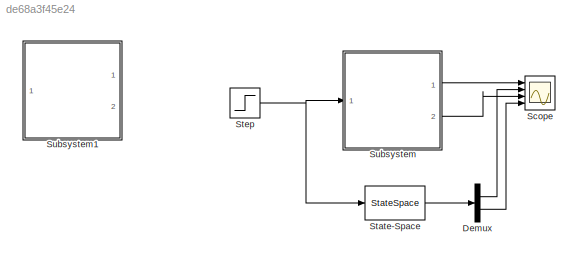
MODEL slx_de68a3f45e24
KIND model
CONFIG AbsTol = auto
CONFIG EnableMultiTasking = off
CONFIG FixedStep = auto
CONFIG MaxStep = auto
CONFIG MinStep = auto
CONFIG RelTol = 1e-3
CONFIG SampleTimeConstraint = Unconstrained
CONFIG SolverName = VariableStepAuto
CONFIG StartTime = 0.0
CONFIG StopTime = 10.0
WORKSPACE source: mxarray member
WORKSPACE b = 4
WORKSPACE k1 = 5
WORKSPACE k2 = 3
WORKSPACE m1 = 2
WORKSPACE m2 = 2
BLOCK [Demux] Demux
  Commented = on
  Outputs = 2
  Ports = [1, 2]
BLOCK [Scope] Scope
  Commented = on
  Floating = off
  NumInputPorts = 4
  Ports = [4]
  ScopeSpecificationString = Simulink.scopes.TimeScopeBlockCfg('CurrentConfiguration', extmgr.ConfigurationSet(extmgr.Configuration('Core','General UI',true),extmgr.Configuration('Core','Source UI',true),extmgr.Configuration('Sources','WiredSimulink',true),extmgr.Configuration('Visuals','Time Domain',true,'SerializedDisplays',{struct('MinYLimReal','-0.18962','MaxYLimReal','1.70656','YLabelReal','','MinYLimMag','0.00000','MaxY...<+1367ch>
BLOCK [StateSpace] State-Space
  A = [0 1 0 0; (-k2/m2) (-b/m2) (k2/m2) (b/m2); 0 0 0 1; (k2/m1) (b/m1) (-(k2+k1)/m1) (-b/m1) ]
  B = [0; 1; 0; 0;]
  C = [1 0 0 0;0 0 1 0]
  Commented = on
  D = [0;0;]
  InitialCondition = 0
  Ports = [1, 1]
BLOCK [Step] Step
  Commented = on
  SampleTime = 0
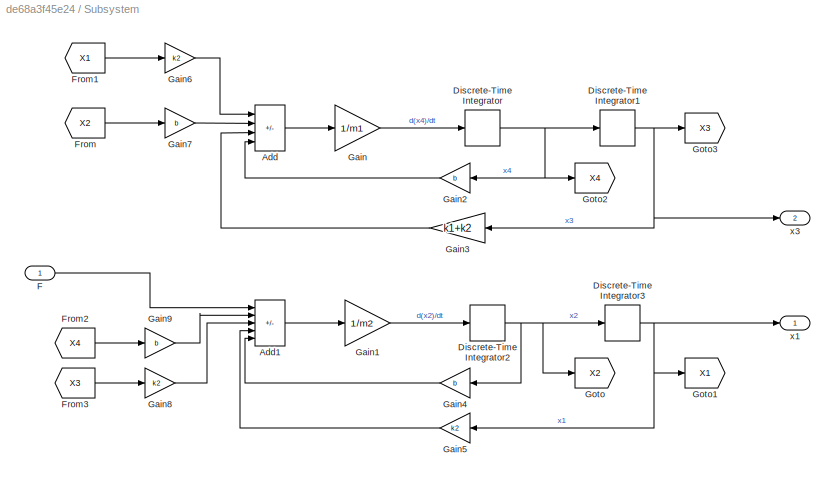
BLOCK [SubSystem] Subsystem
  Commented = on
  Ports = [1, 2]
  RequestExecContextInheritance = off
  TreatAsAtomicUnit = on
BLOCK [Sum] Subsystem/Add
  IconShape = rectangular
  Inputs = ++--
  Ports = [4, 1]
BLOCK [Sum] Subsystem/Add1
  IconShape = rectangular
  Inputs = +++--
  Ports = [5, 1]
BLOCK [DiscreteIntegrator] Subsystem/Discrete-Time Integrator
  ICPrevOutput = DiscIntNeverNeededParam
  ICPrevScaledInput = DiscIntNeverNeededParam
  InitialConditionSetting = Auto
  Ports = [1, 1]
  SampleTime = -1
BLOCK [DiscreteIntegrator] Subsystem/Discrete-Time Integrator1
  ICPrevOutput = DiscIntNeverNeededParam
  ICPrevScaledInput = DiscIntNeverNeededParam
  InitialConditionSetting = Auto
  Ports = [1, 1]
  SampleTime = -1
BLOCK [DiscreteIntegrator] Subsystem/Discrete-Time Integrator2
  ICPrevOutput = DiscIntNeverNeededParam
  ICPrevScaledInput = DiscIntNeverNeededParam
  InitialConditionSetting = Auto
  Ports = [1, 1]
  SampleTime = -1
BLOCK [DiscreteIntegrator] Subsystem/Discrete-Time Integrator3
  ICPrevOutput = DiscIntNeverNeededParam
  ICPrevScaledInput = DiscIntNeverNeededParam
  InitialConditionSetting = Auto
  Ports = [1, 1]
  SampleTime = -1
BLOCK [Inport] Subsystem/F
BLOCK [From] Subsystem/From
  GotoTag = X2
BLOCK [From] Subsystem/From1
  GotoTag = X1
BLOCK [From] Subsystem/From2
  GotoTag = X4
BLOCK [From] Subsystem/From3
  GotoTag = X3
BLOCK [Gain] Subsystem/Gain
  Gain = 1/m1
BLOCK [Gain] Subsystem/Gain1
  Gain = 1/m2
BLOCK [Gain] Subsystem/Gain2
  Gain = b
BLOCK [Gain] Subsystem/Gain3
  Gain = k1+k2
BLOCK [Gain] Subsystem/Gain4
  Gain = b
BLOCK [Gain] Subsystem/Gain5
  Gain = k2
BLOCK [Gain] Subsystem/Gain6
  Gain = k2
BLOCK [Gain] Subsystem/Gain7
  Gain = b
BLOCK [Gain] Subsystem/Gain8
  Gain = k2
BLOCK [Gain] Subsystem/Gain9
  Gain = b
BLOCK [Goto] Subsystem/Goto
  GotoTag = X2
BLOCK [Goto] Subsystem/Goto1
  GotoTag = X1
BLOCK [Goto] Subsystem/Goto2
  GotoTag = X4
BLOCK [Goto] Subsystem/Goto3
  GotoTag = X3
BLOCK [Outport] Subsystem/x1
BLOCK [Outport] Subsystem/x3
  Port = 2
BLOCK [ModelReference] Subsystem1
  ModelNameDialog = twoMSD
  ModelReferenceVersion = 1.4
  Ports = [1, 2]
LINE Demux:1 -> Scope:2
LINE Demux:2 -> Scope:4
LINE State-Space:1 -> Demux:1
NET Step:1 -> State-Space:1, Subsystem:1
LINE Subsystem/Add1:1 -> Subsystem/Gain1:1
LINE Subsystem/Add:1 -> Subsystem/Gain:1
NET Subsystem/Discrete-Time Integrator1:1 -> Subsystem/Gain3:1, Subsystem/Goto3:1, Subsystem/x3:1
NET Subsystem/Discrete-Time Integrator2:1 -> Subsystem/Discrete-Time Integrator3:1, Subsystem/Gain4:1, Subsystem/Goto:1
NET Subsystem/Discrete-Time Integrator3:1 -> Subsystem/Gain5:1, Subsystem/Goto1:1, Subsystem/x1:1
NET Subsystem/Discrete-Time Integrator:1 -> Subsystem/Discrete-Time Integrator1:1, Subsystem/Gain2:1, Subsystem/Goto2:1
LINE Subsystem/F:1 -> Subsystem/Add1:1
LINE Subsystem/From1:1 -> Subsystem/Gain6:1
LINE Subsystem/From2:1 -> Subsystem/Gain9:1
LINE Subsystem/From3:1 -> Subsystem/Gain8:1
LINE Subsystem/From:1 -> Subsystem/Gain7:1
LINE Subsystem/Gain1:1 -> Subsystem/Discrete-Time Integrator2:1
LINE Subsystem/Gain2:1 -> Subsystem/Add:4
LINE Subsystem/Gain3:1 -> Subsystem/Add:3
LINE Subsystem/Gain4:1 -> Subsystem/Add1:5
LINE Subsystem/Gain5:1 -> Subsystem/Add1:4
LINE Subsystem/Gain6:1 -> Subsystem/Add:1
LINE Subsystem/Gain7:1 -> Subsystem/Add:2
LINE Subsystem/Gain8:1 -> Subsystem/Add1:3
LINE Subsystem/Gain9:1 -> Subsystem/Add1:2
LINE Subsystem/Gain:1 -> Subsystem/Discrete-Time Integrator:1
LINE Subsystem:1 -> Scope:1
LINE Subsystem:2 -> Scope:3
note: NET lines group one-source signal fan-out (src -> all destinations, sorted); 1:1 wires keep LINE
